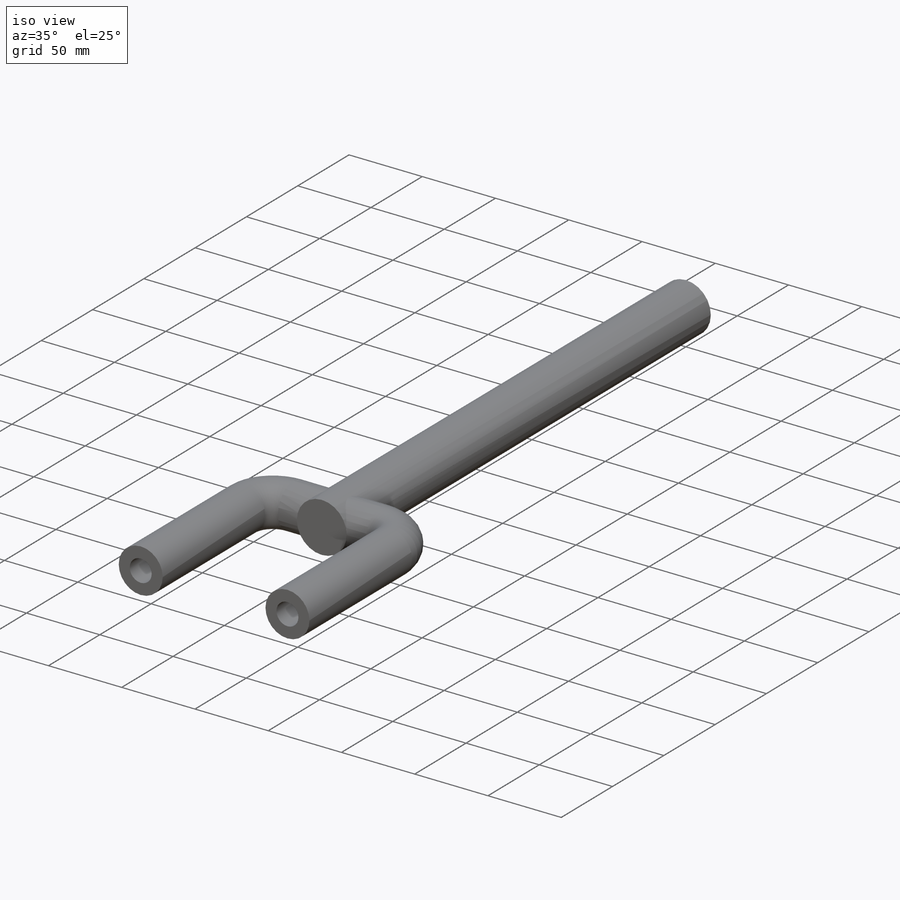
[diagram: iso view]
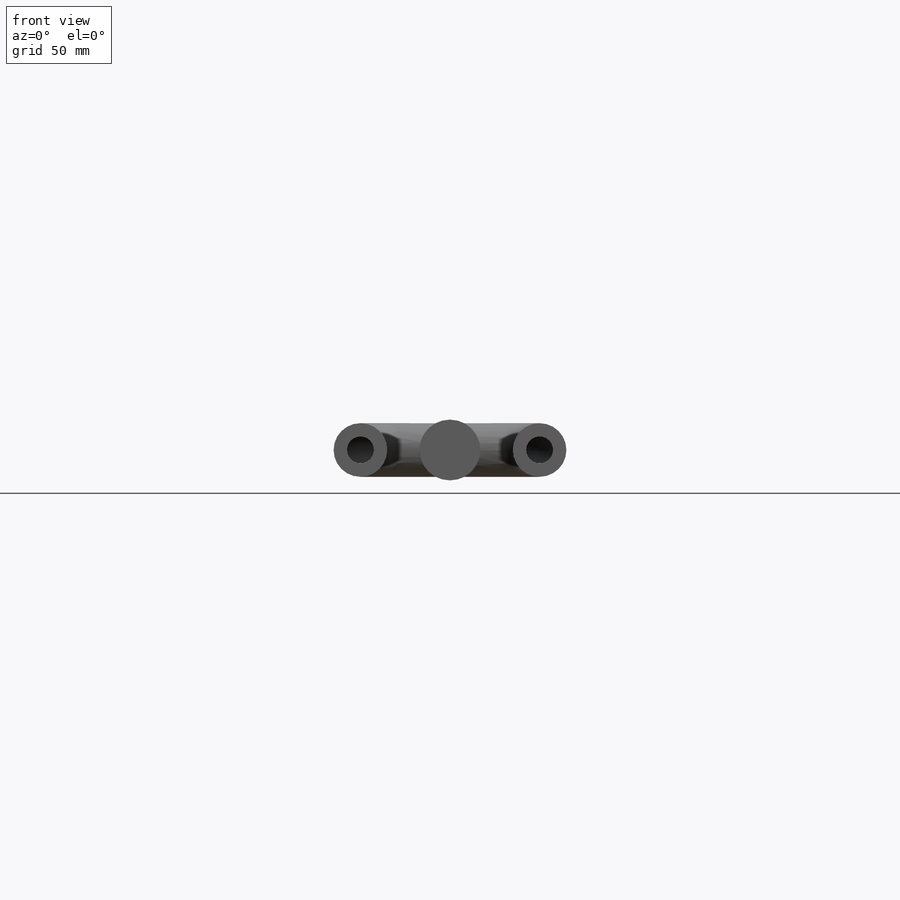
[diagram: front view]
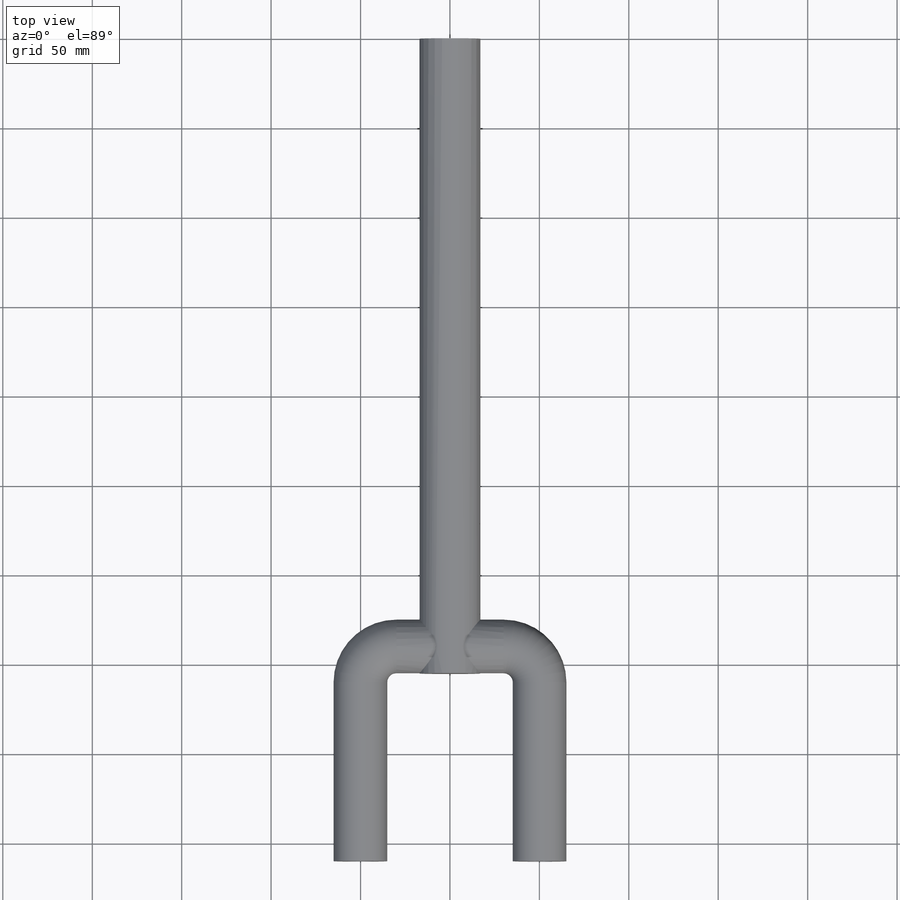
[diagram: top view]
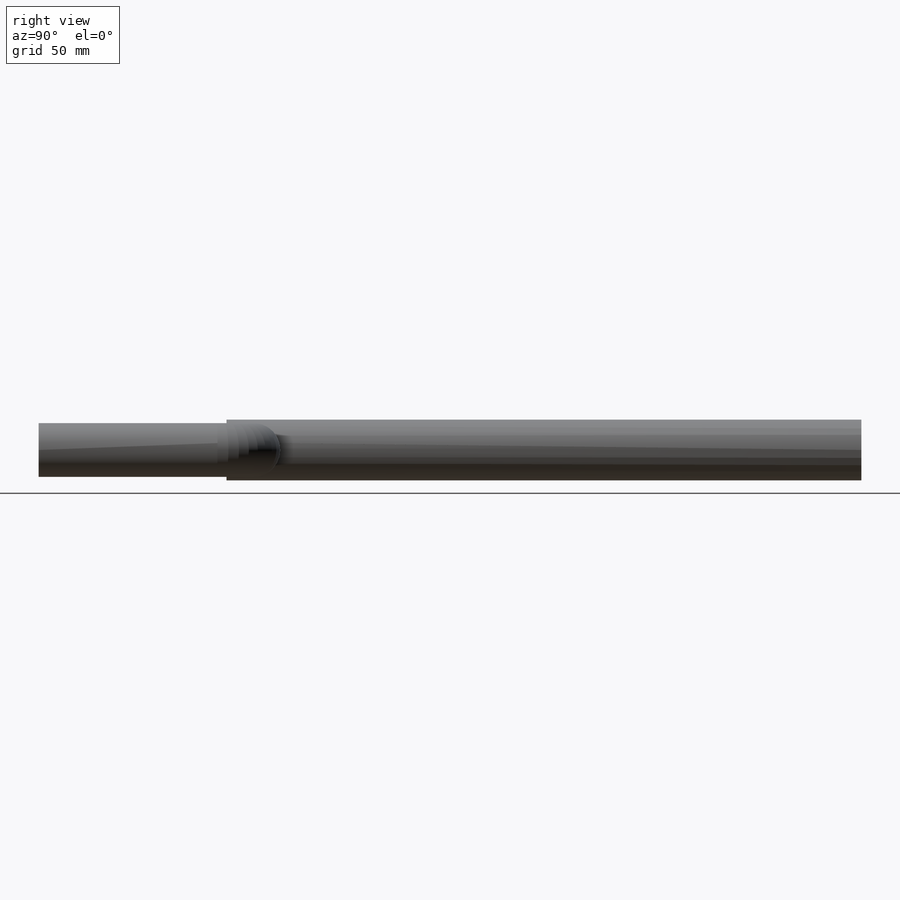
[diagram: right view]
SOLIDWORKS PART (.sldprt)
format: sldprt  version: not decoded by parser v0  size: 186,368 bytes
history: native  units: mm
features: sketch x5, plane x2, sweep x2, material x1, extrude x1 (+14 scaffold rows collapsed)
feature tree (25):
  scaffold x14  (default folders/planes/origin — collapsed)
  material  "1060 Alloy"
  sketch  "Sketch2"  dims[D1=15.0mm]
  extrude  "Extrude1"  Depth=205mm
  plane  "Plane1"  Offset=15mm
  sketch  "Sketch3"  dims[c1.D1=5.0mm c1.D2=5.0mm c2.D1=375.0mm c2.D2=25.0mm c2.D3=100.0mm c2.D4=40.0mm]
  plane  "Plane3"  Offset=15mm
  sketch  "Sketch5"  dims[D1=20.0mm]
  sweep  "Sweep5"
  sketch  "Sketch10"  dims[D1=10.0mm]
  sketch  "Sketch11"  dims[D1=220.0mm D2=100.0mm D3=30.0mm]
  sweep  "Sweep6"
decode coverage: 6 of 8 modeling features carry decoded parameters
note: suppression state not decoded; provenance and decode notes live in map.json
